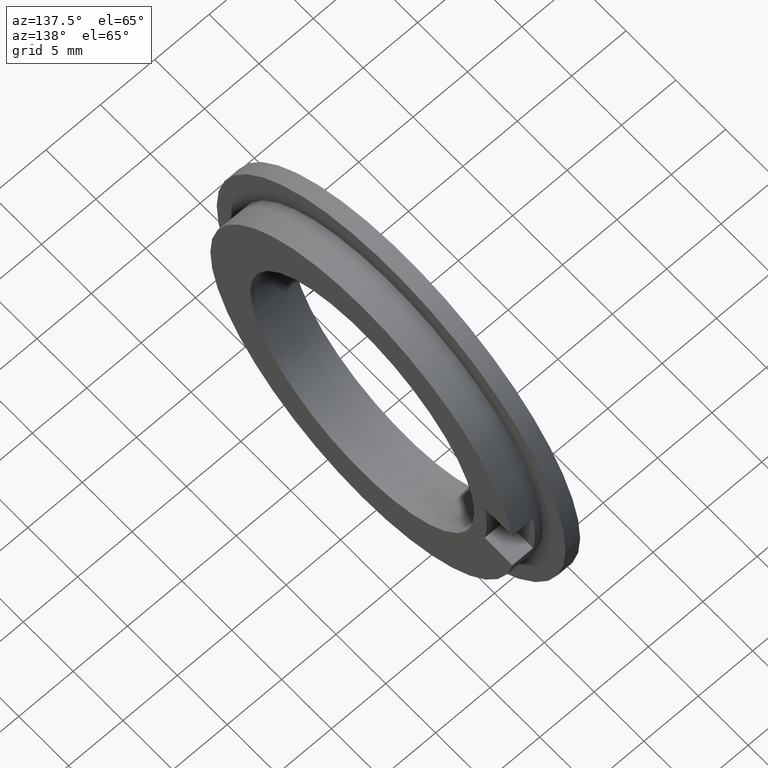
[diagram: clean part render]
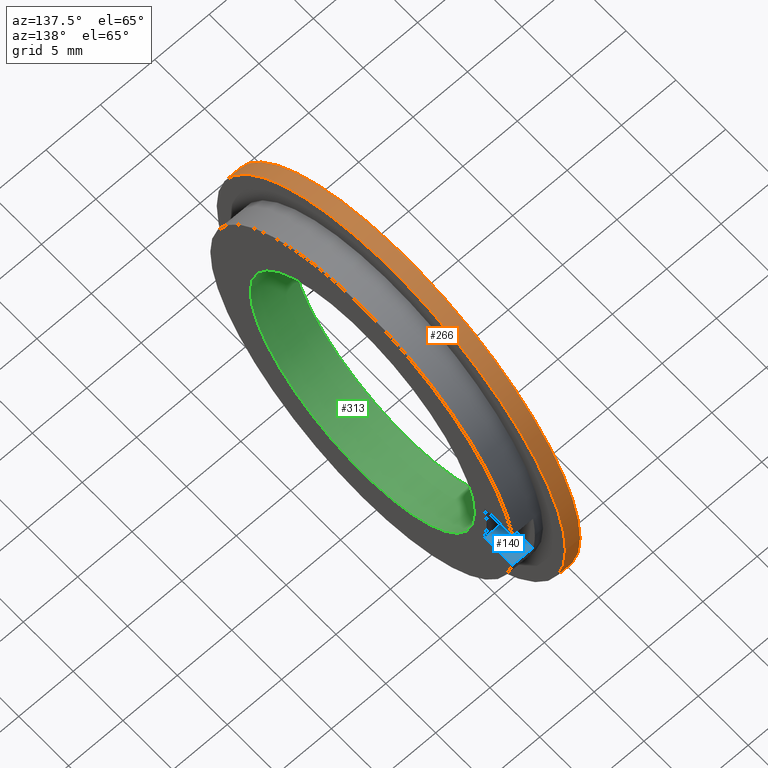
[diagram: same view with three faces highlighted in distinct colors, each labeled with its STEP entity id]
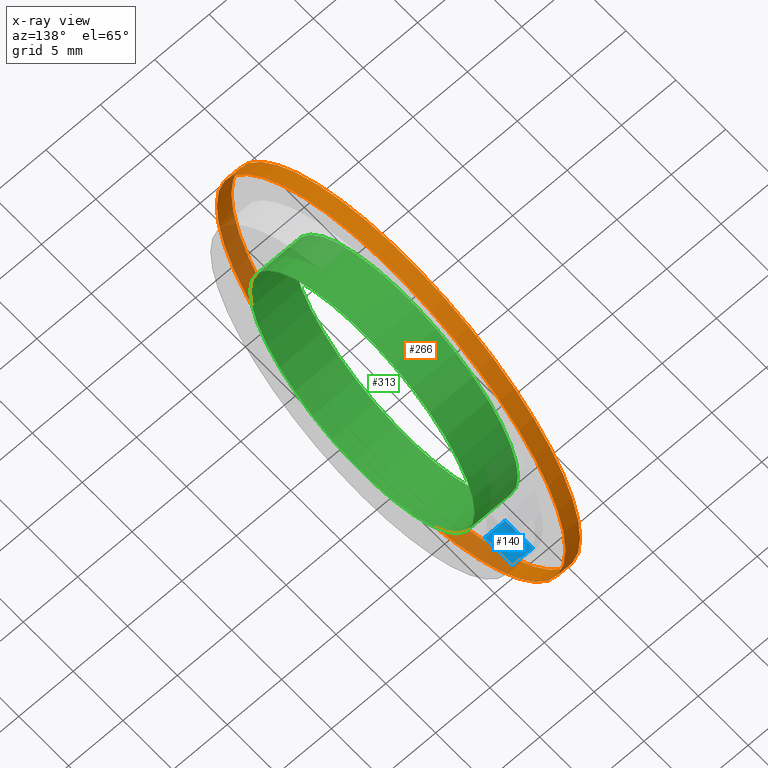
[diagram: x-ray of the same camera — body ghosted, the three highlighted faces saturated]
A machine part, auxiliary view with three faces highlighted in distinct colors.
The next image is the same camera in x-ray (body ghosted, the three faces saturated) — at least one of them is partly hidden behind the body in this view.
Their STEP definitions:

[orange] entity #266 — the highlighted cylindrical surface (bore or boss wall) has radius 17.5 mm, axis along (1, 0, 0).
#224=CARTESIAN_POINT('',(-6.322580550947500,22.153225097050932,0.0));
#225=VERTEX_POINT('',#224);
#226=CARTESIAN_POINT('',(-6.322580550947500,4.653225097050933,0.0));
#227=DIRECTION('',(1.0,0.0,0.0));
#228=DIRECTION('',(0.0,1.0,0.0));
#229=AXIS2_PLACEMENT_3D('',#226,#227,#228);
#230=CIRCLE('',#229,17.500000000000000);
#231=EDGE_CURVE('',#225,#225,#230,.T.);
#247=CARTESIAN_POINT('',(-5.647580550947500,4.653225097050933,0.0));
#248=DIRECTION('',(1.0,0.0,0.0));
#249=DIRECTION('',(0.0,1.0,0.0));
#250=AXIS2_PLACEMENT_3D('',#247,#248,#249);
#251=CYLINDRICAL_SURFACE('',#250,17.500000000000000);
#252=CARTESIAN_POINT('',(-4.972580550947500,22.153225097050932,0.0));
#253=VERTEX_POINT('',#252);
#254=CARTESIAN_POINT('',(-4.972580550947500,4.653225097050933,0.0));
#255=DIRECTION('',(1.0,0.0,0.0));
#256=DIRECTION('',(0.0,1.0,0.0));
#257=AXIS2_PLACEMENT_3D('',#254,#255,#256);
#258=CIRCLE('',#257,17.500000000000000);
#259=EDGE_CURVE('',#253,#253,#258,.T.);
#260=ORIENTED_EDGE('',*,*,#259,.F.);
#261=EDGE_LOOP('',(#260));
#262=FACE_OUTER_BOUND('',#261,.T.);
#263=ORIENTED_EDGE('',*,*,#231,.T.);
#264=EDGE_LOOP('',(#263));
#265=FACE_BOUND('',#264,.T.);
#266=ADVANCED_FACE('',(#262,#265),#251,.T.);

[blue] entity #140 — the highlighted planar face has unit normal (0, 0, -1).
#75=CARTESIAN_POINT('',(-4.222580550947495,16.930337949835174,-2.349999999999998));
#76=VERTEX_POINT('',#75);
#92=CARTESIAN_POINT('',(-2.322580550947496,16.930337949835174,-2.349999999999998));
#93=VERTEX_POINT('',#92);
#101=CARTESIAN_POINT('',(-2.322580550947496,16.930337949835174,-2.349999999999998));
#102=DIRECTION('',(-1.0,0.0,0.0));
#103=VECTOR('',#102,1.900000000000000);
#104=LINE('',#101,#103);
#105=EDGE_CURVE('',#93,#76,#104,.T.);
#110=CARTESIAN_POINT('',(-2.322580550947496,16.930337949835174,-2.349999999999998));
#111=DIRECTION('',(0.0,0.0,-1.0));
#112=DIRECTION('',(-1.0,0.0,0.0));
#113=AXIS2_PLACEMENT_3D('',#110,#111,#112);
#114=PLANE('',#113);
#115=CARTESIAN_POINT('',(-4.222580550947495,19.721071658520824,-2.349999999999998));
#116=VERTEX_POINT('',#115);
#117=CARTESIAN_POINT('',(-4.222580550947495,16.930337949835174,-2.349999999999998));
#118=DIRECTION('',(0.0,1.0,0.0));
#119=VECTOR('',#118,2.790733708685650);
#120=LINE('',#117,#119);
#121=EDGE_CURVE('',#76,#116,#120,.T.);
#122=ORIENTED_EDGE('',*,*,#121,.F.);
#123=ORIENTED_EDGE('',*,*,#105,.F.);
#124=CARTESIAN_POINT('',(-2.322580550947496,19.721071658520824,-2.349999999999998));
#125=VERTEX_POINT('',#124);
#126=CARTESIAN_POINT('',(-2.322580550947496,19.721071658520824,-2.349999999999998));
#127=DIRECTION('',(0.0,-1.0,0.0));
#128=VECTOR('',#127,2.790733708685650);
#129=LINE('',#126,#128);
#130=EDGE_CURVE('',#125,#93,#129,.T.);
#131=ORIENTED_EDGE('',*,*,#130,.F.);
#132=CARTESIAN_POINT('',(-4.222580550947495,19.721071658520824,-2.349999999999998));
#133=DIRECTION('',(1.0,0.0,0.0));
#134=VECTOR('',#133,1.900000000000000);
#135=LINE('',#132,#134);
#136=EDGE_CURVE('',#116,#125,#135,.T.);
#137=ORIENTED_EDGE('',*,*,#136,.F.);
#138=EDGE_LOOP('',(#122,#123,#131,#137));
#139=FACE_OUTER_BOUND('',#138,.T.);
#140=ADVANCED_FACE('',(#139),#114,.F.);

[green] entity #313 — the highlighted cylindrical surface (bore or boss wall) has radius 11.25 mm, axis along (1, 0, 0).
#207=CARTESIAN_POINT('',(-2.322580550947495,15.903225097050932,0.0));
#208=VERTEX_POINT('',#207);
#209=CARTESIAN_POINT('',(-2.322580550947495,4.653225097050933,0.0));
#210=DIRECTION('',(1.0,0.0,0.0));
#211=DIRECTION('',(0.0,1.0,0.0));
#212=AXIS2_PLACEMENT_3D('',#209,#210,#211);
#213=CIRCLE('',#212,11.250000000000000);
#214=EDGE_CURVE('',#208,#208,#213,.T.);
#235=CARTESIAN_POINT('',(-6.322580550947499,15.903225097050932,0.0));
#236=VERTEX_POINT('',#235);
#237=CARTESIAN_POINT('',(-6.322580550947499,4.653225097050933,0.0));
#238=DIRECTION('',(1.0,0.0,0.0));
#239=DIRECTION('',(0.0,1.0,0.0));
#240=AXIS2_PLACEMENT_3D('',#237,#238,#239);
#241=CIRCLE('',#240,11.250000000000000);
#242=EDGE_CURVE('',#236,#236,#241,.T.);
#302=CARTESIAN_POINT('',(-4.322580550947497,4.653225097050933,0.0));
#303=DIRECTION('',(1.0,0.0,0.0));
#304=DIRECTION('',(0.0,1.0,0.0));
#305=AXIS2_PLACEMENT_3D('',#302,#303,#304);
#306=CYLINDRICAL_SURFACE('',#305,11.250000000000000);
#307=ORIENTED_EDGE('',*,*,#242,.F.);
#308=EDGE_LOOP('',(#307));
#309=FACE_OUTER_BOUND('',#308,.T.);
#310=ORIENTED_EDGE('',*,*,#214,.T.);
#311=EDGE_LOOP('',(#310));
#312=FACE_BOUND('',#311,.T.);
#313=ADVANCED_FACE('',(#309,#312),#306,.F.);